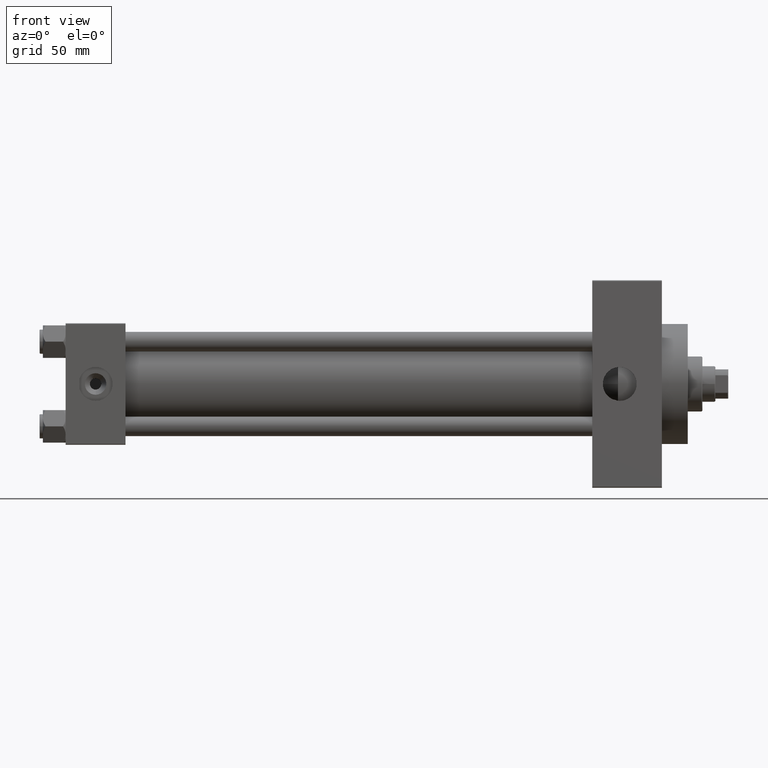
[diagram: clean part render]
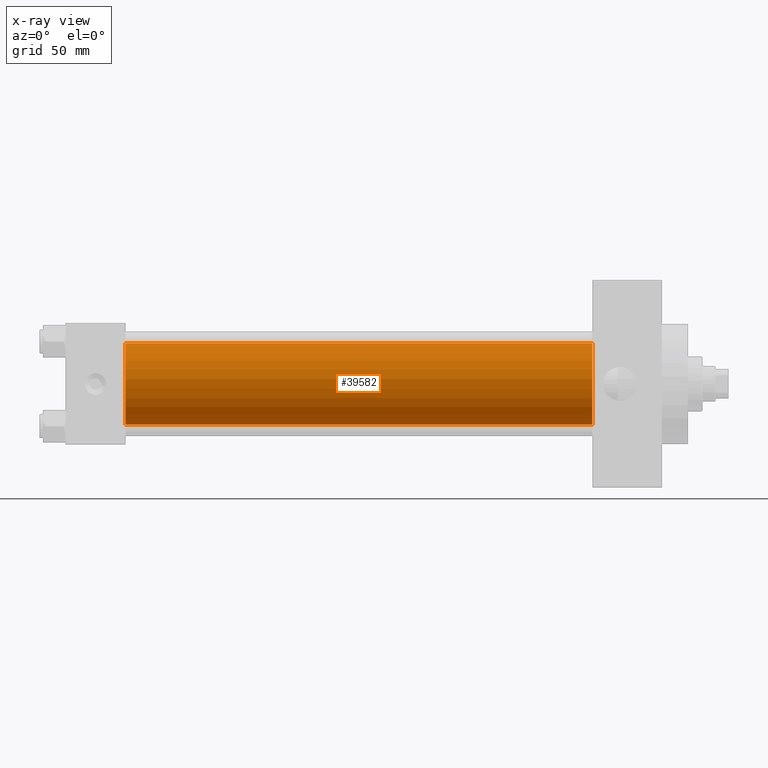
[diagram: x-ray — body ghosted, one internal face saturated and labeled with its STEP entity id]
A machine part, front view, then the same camera in x-ray: the body is ghosted and one INTERNAL B-rep face — a face not visible from any outside direction — is saturated and labeled: STEP entity #39582.
In plain terms, the highlighted cylindrical surface (partial cylindrical patch) has radius 25 mm, axis along (-1, -0, -0).
Its self-contained STEP definition (entity closure, byte-faithful):
#779 = EDGE_LOOP ( 'NONE', ( #30519, #37935, #44740, #14686 ) ) ;
#3283 = DIRECTION ( 'NONE',  ( 1.000000000000000000, 0.000000000000000000, 0.000000000000000000 ) ) ;
#4363 = FACE_OUTER_BOUND ( 'NONE', #779, .T. ) ;
#4763 = VECTOR ( 'NONE', #8613, 1000.000000000000000 ) ;
#5106 = DIRECTION ( 'NONE',  ( -1.000000000000000000, -0.000000000000000000, -0.000000000000000000 ) ) ;
#6044 = DIRECTION ( 'NONE',  ( 0.000000000000000000, 0.000000000000000000, -1.000000000000000000 ) ) ;
#8396 = CARTESIAN_POINT ( 'NONE',  ( 324.9999999999999432, -2.602085213965210642E-15, 0.000000000000000000 ) ) ;
#8603 = DIRECTION ( 'NONE',  ( 0.000000000000000000, 0.000000000000000000, 1.000000000000000000 ) ) ;
#8613 = DIRECTION ( 'NONE',  ( -1.000000000000000000, -0.000000000000000000, -0.000000000000000000 ) ) ;
#8674 = VERTEX_POINT ( 'NONE', #25273 ) ;
#8832 = EDGE_CURVE ( 'NONE', #38431, #8674, #44975, .T. ) ;
#10805 = CIRCLE ( 'NONE', #34637, 25.00000000000000000 ) ;
#12347 = CARTESIAN_POINT ( 'NONE',  ( 324.9999999999999432, -2.602085213965210642E-15, 25.00000000000000000 ) ) ;
#13068 = CARTESIAN_POINT ( 'NONE',  ( 324.9999999999999432, -2.602085213965210642E-15, 0.000000000000000000 ) ) ;
#14686 = ORIENTED_EDGE ( 'NONE', *, *, #40044, .F. ) ;
#16628 = AXIS2_PLACEMENT_3D ( 'NONE', #13068, #5106, #8603 ) ;
#22021 = CARTESIAN_POINT ( 'NONE',  ( 324.9999999999999432, 4.595317839031724996E-16, -25.00000000000000000 ) ) ;
#25273 = CARTESIAN_POINT ( 'NONE',  ( 37.00000000000000000, 4.595317839031724996E-16, -25.00000000000000000 ) ) ;
#25451 = CARTESIAN_POINT ( 'NONE',  ( 37.00000000000000000, -2.602085213965210642E-15, 0.000000000000000000 ) ) ;
#26508 = EDGE_CURVE ( 'NONE', #42054, #27014, #10805, .T. ) ;
#27014 = VERTEX_POINT ( 'NONE', #22021 ) ;
#28514 = CYLINDRICAL_SURFACE ( 'NONE', #16628, 25.00000000000000000 ) ;
#30115 = CARTESIAN_POINT ( 'NONE',  ( 37.00000000000000000, -2.602085213965210642E-15, 25.00000000000000000 ) ) ;
#30519 = ORIENTED_EDGE ( 'NONE', *, *, #26508, .T. ) ;
#31102 = CARTESIAN_POINT ( 'NONE',  ( 324.9999999999999432, -2.602085213965210642E-15, 25.00000000000000000 ) ) ;
#31561 = DIRECTION ( 'NONE',  ( 0.000000000000000000, 0.000000000000000000, -1.000000000000000000 ) ) ;
#32108 = VECTOR ( 'NONE', #37667, 1000.000000000000000 ) ;
#32211 = AXIS2_PLACEMENT_3D ( 'NONE', #25451, #3283, #6044 ) ;
#33690 = CARTESIAN_POINT ( 'NONE',  ( 324.9999999999999432, 4.595317839031724996E-16, -25.00000000000000000 ) ) ;
#34637 = AXIS2_PLACEMENT_3D ( 'NONE', #8396, #38515, #31561 ) ;
#37667 = DIRECTION ( 'NONE',  ( -1.000000000000000000, -0.000000000000000000, -0.000000000000000000 ) ) ;
#37935 = ORIENTED_EDGE ( 'NONE', *, *, #49114, .T. ) ;
#38431 = VERTEX_POINT ( 'NONE', #30115 ) ;
#38515 = DIRECTION ( 'NONE',  ( 1.000000000000000000, 0.000000000000000000, 0.000000000000000000 ) ) ;
#39582 = ADVANCED_FACE ( 'NONE', ( #4363 ), #28514, .F. ) ;
#40044 = EDGE_CURVE ( 'NONE', #42054, #38431, #46472, .T. ) ;
#42054 = VERTEX_POINT ( 'NONE', #31102 ) ;
#44663 = LINE ( 'NONE', #33690, #32108 ) ;
#44740 = ORIENTED_EDGE ( 'NONE', *, *, #8832, .F. ) ;
#44975 = CIRCLE ( 'NONE', #32211, 25.00000000000000000 ) ;
#46472 = LINE ( 'NONE', #12347, #4763 ) ;
#49114 = EDGE_CURVE ( 'NONE', #27014, #8674, #44663, .T. ) ;